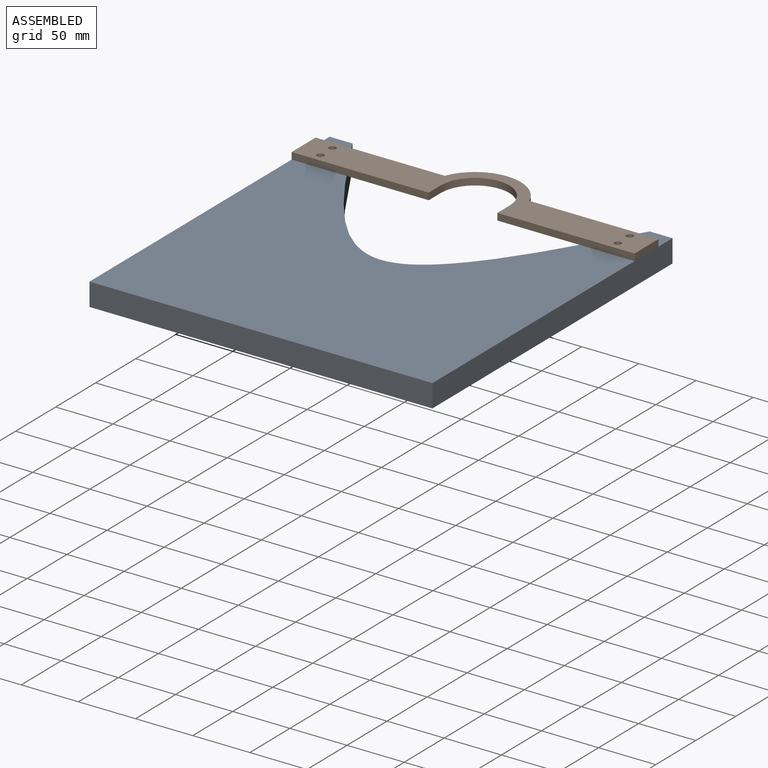
[diagram: assembled view]
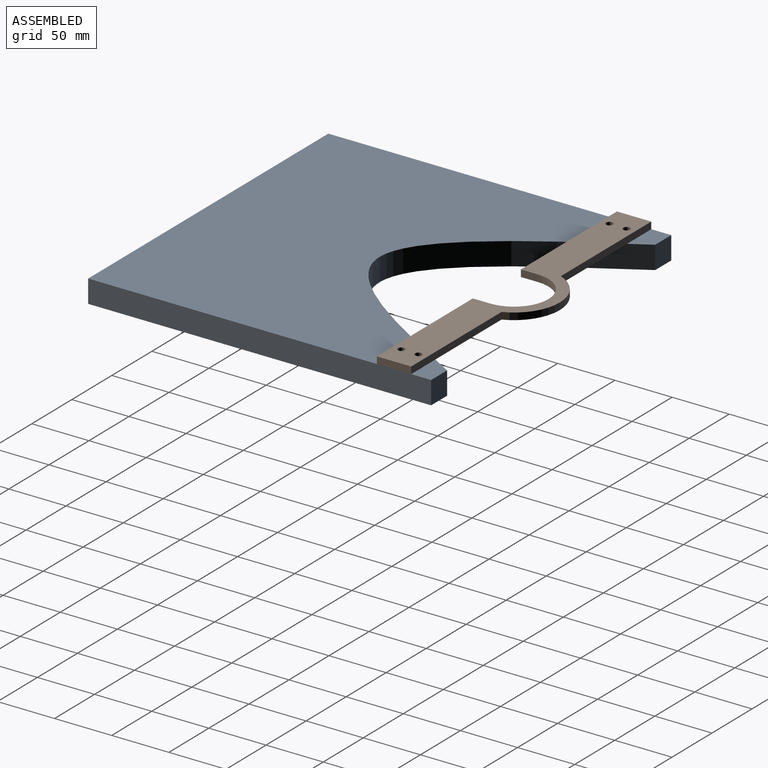
[diagram: assembled view, second angle]
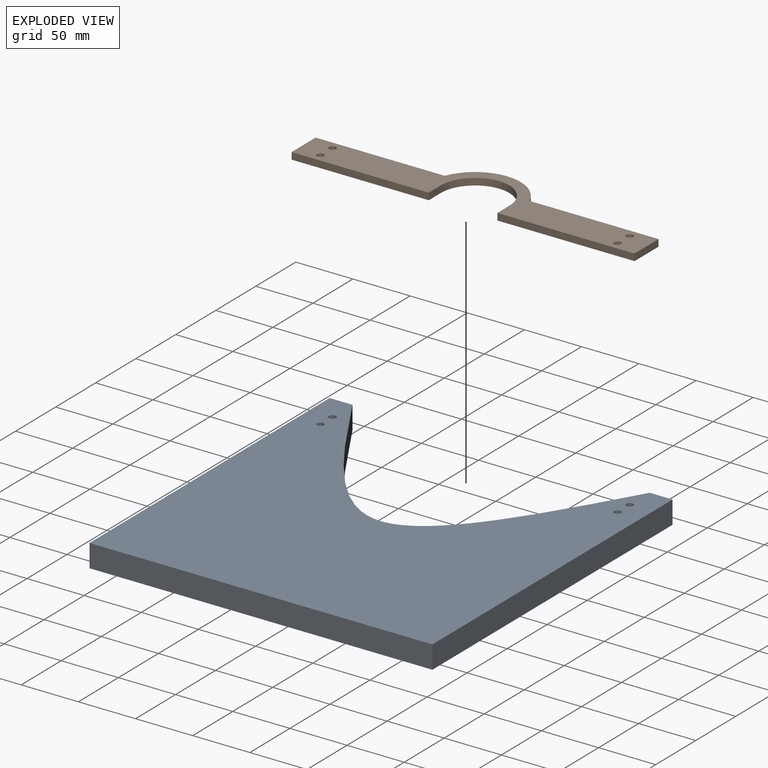
[diagram: exploded view]
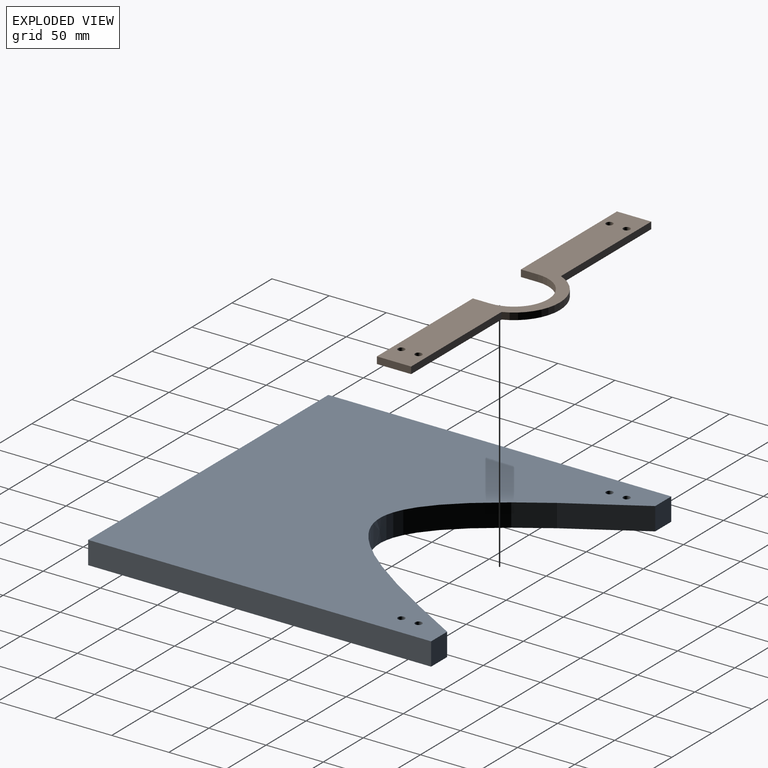
[diagram: exploded view, second angle]
ASSEMBLY  parts=2 mates=2
PART A: 12 faces, bbox 300x300x20 mm
  f0: plane 300x20mm, normal (1,0,0), area 6000mm2, adj f1,f8,f10,f11
  f1: plane 20x20mm, normal (0,1,0), area 400mm2, adj f0,f2,f10,f11
  f2: extruded ~260x150mm, area 8189.5mm2, adj f1,f3,f10,f11
  f3: plane 20x20mm, normal (0,1,0), area 400mm2, adj f2,f4,f10,f11
  f4: plane 300x20mm, normal (-1,0,0), area 6000mm2, adj f3,f8,f10,f11
  f5: cylinder r=3mm len=20mm, axis (0,0,-1), area 377mm2, adj f10,f11
  f6: cylinder r=3mm len=20mm, axis (0,0,-1), area 377mm2, adj f10,f11
  f7: cylinder r=3mm len=20mm, axis (0,0,-1), area 377mm2, adj f10,f11
  f8: plane 300x20mm, normal (0,-1,0), area 6000mm2, adj f0,f4,f10,f11
  f9: cylinder r=3mm len=20mm, axis (0,0,-1), area 377mm2, adj f10,f11
  f10: plane 300x300mm, normal (0,0,1), area 65511.3mm2, adj f0,f1,f2,f3,f4,f5,f6,f7
  f11: plane 300x300mm, normal (0,0,-1), area 65511.3mm2, adj f0,f1,f2,f3,f4,f5,f6,f7
PART B: 16 faces, bbox 300x55x6 mm
  f0: plane 30x6mm, normal (1,0,0), area 180mm2, adj f1,f12,f14,f15
  f1: plane 112.92x6mm, normal (0,1,0), area 677.5mm2, adj f0,f2,f14,f15
  f2: cylinder r=40mm len=74.16mm, axis (0,0,-1), area 569.5mm2, adj f1,f3,f14,f15
  f3: plane 112.92x6mm, normal (0,1,0), area 677.5mm2, adj f2,f4,f14,f15
  f4: plane 30x6mm, normal (-1,0,0), area 180mm2, adj f3,f5,f14,f15
  f5: plane 120x6mm, normal (0,-1,0), area 720mm2, adj f4,f6,f14,f15
  f6: plane 15x6mm, normal (1,0,0), area 90mm2, adj f5,f7,f14,f15
  f7: cylinder r=30mm len=60mm, axis (0,0,-1), area 565.5mm2, adj f6,f8,f14,f15
  f8: plane 15x6mm, normal (-1,0,0), area 90mm2, adj f7,f12,f14,f15
  f9: cylinder r=3mm len=6mm, axis (0,0,-1), area 113.1mm2, adj f14,f15
  f10: cylinder r=3mm len=6mm, axis (0,0,-1), area 113.1mm2, adj f14,f15
  f11: cylinder r=3mm len=6mm, axis (0,0,-1), area 113.1mm2, adj f14,f15
  f12: plane 120x6mm, normal (0,-1,0), area 720mm2, adj f0,f8,f14,f15
  f13: cylinder r=3mm len=6mm, axis (0,0,-1), area 113.1mm2, adj f14,f15
  f14: plane 300x55mm, normal (0,0,1), area 7915.2mm2, adj f0,f1,f2,f3,f4,f5,f6,f7
  f15: plane 300x55mm, normal (0,0,-1), area 7915.2mm2, adj f0,f1,f2,f3,f4,f5,f6,f7
PLACE A t=(-115.38,-21.38,60.35)mm
PLACE B t=(-115.38,96.12,80.35)mm
MATE planar B.f15 <-> A.f10  axis (0,0,-1) through (-145.38,96.12,80.35)mm
MATE cylindrical B.f11 <-> A.f7  axis (0,0,-1) through (-245.38,103.62,80.35)mm
